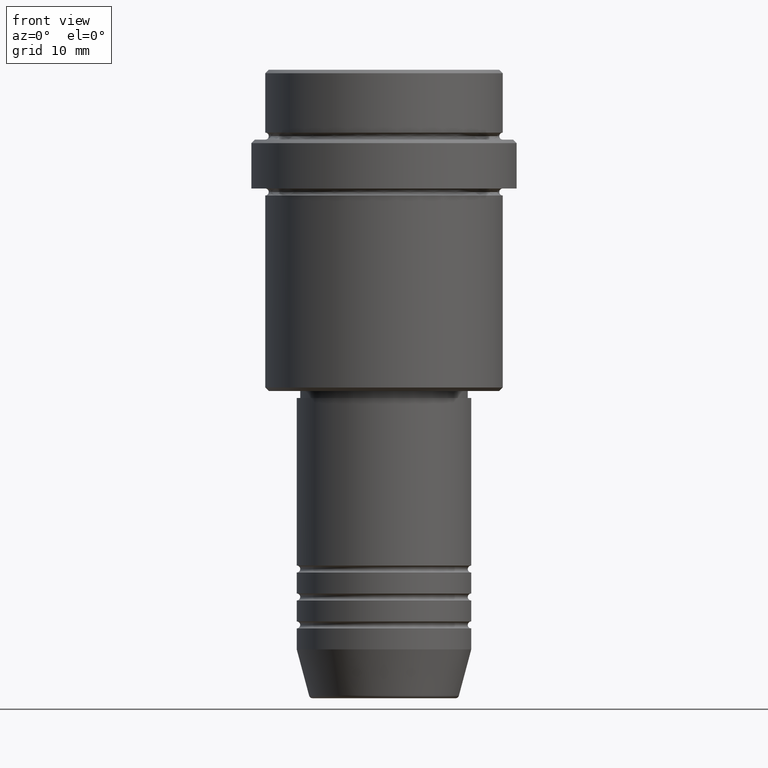
[diagram: clean part render]
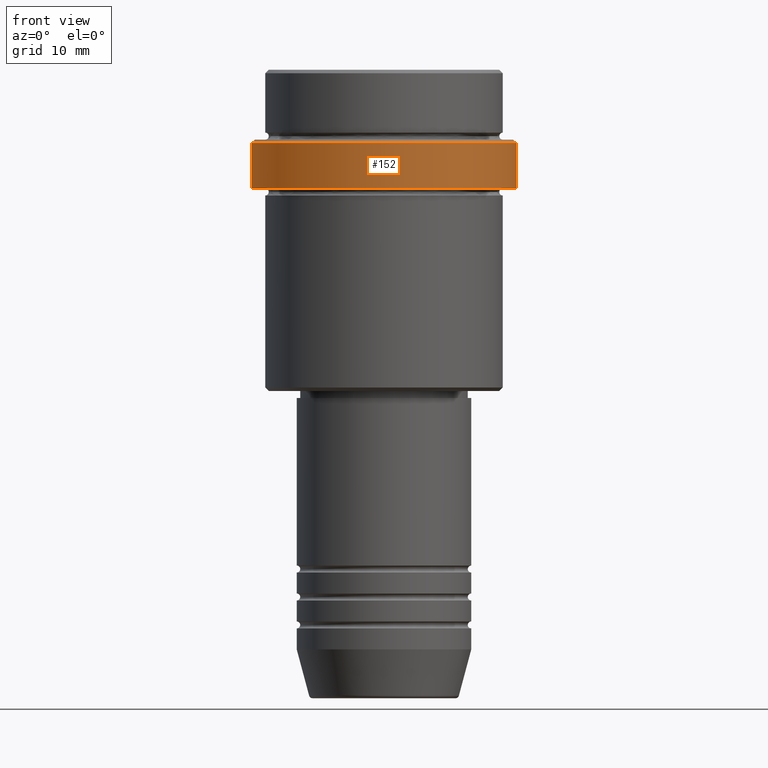
[diagram: same view with one face highlighted and labeled with its STEP entity id]
A machine part, front view. The second image highlights one B-rep face of the part: STEP entity #152.
In plain terms, the highlighted cylindrical surface (partial cylindrical patch) has radius 19 mm, axis along (-0, -0, 1).
Its self-contained STEP definition (entity closure, byte-faithful):
#41 = VERTEX_POINT ( 'NONE', #625 ) ;
#46 = VECTOR ( 'NONE', #1044, 1000.000000000000000 ) ;
#127 = ORIENTED_EDGE ( 'NONE', *, *, #938, .T. ) ;
#152 = ADVANCED_FACE ( 'NONE', ( #873 ), #1095, .T. ) ;
#202 = VERTEX_POINT ( 'NONE', #537 ) ;
#263 = CARTESIAN_POINT ( 'NONE',  ( 0.000000000000000000, 0.000000000000000000, -10.50000000000001599 ) ) ;
#287 = LINE ( 'NONE', #605, #46 ) ;
#309 = EDGE_CURVE ( 'NONE', #1327, #1240, #1190, .T. ) ;
#315 = CARTESIAN_POINT ( 'NONE',  ( 19.00000000000000000, 0.000000000000000000, -17.00000000000000000 ) ) ;
#320 = AXIS2_PLACEMENT_3D ( 'NONE', #885, #571, #788 ) ;
#444 = EDGE_CURVE ( 'NONE', #202, #41, #1118, .T. ) ;
#497 = DIRECTION ( 'NONE',  ( 1.000000000000000000, 0.000000000000000000, 0.000000000000000000 ) ) ;
#537 = CARTESIAN_POINT ( 'NONE',  ( 19.00000000000000000, 0.000000000000000000, -10.50000000000001599 ) ) ;
#567 = CARTESIAN_POINT ( 'NONE',  ( -19.00000000000000000, 2.326828918379970970E-15, 0.000000000000000000 ) ) ;
#571 = DIRECTION ( 'NONE',  ( -0.000000000000000000, -0.000000000000000000, 1.000000000000000000 ) ) ;
#591 = DIRECTION ( 'NONE',  ( 0.000000000000000000, 0.000000000000000000, -1.000000000000000000 ) ) ;
#605 = CARTESIAN_POINT ( 'NONE',  ( 19.00000000000000000, 0.000000000000000000, 0.000000000000000000 ) ) ;
#625 = CARTESIAN_POINT ( 'NONE',  ( -19.00000000000000000, 2.326828918379970970E-15, -10.50000000000001599 ) ) ;
#642 = ORIENTED_EDGE ( 'NONE', *, *, #444, .T. ) ;
#653 = EDGE_CURVE ( 'NONE', #1327, #41, #841, .T. ) ;
#661 = AXIS2_PLACEMENT_3D ( 'NONE', #263, #591, #497 ) ;
#709 = ORIENTED_EDGE ( 'NONE', *, *, #309, .T. ) ;
#788 = DIRECTION ( 'NONE',  ( 1.000000000000000000, 0.000000000000000000, 0.000000000000000000 ) ) ;
#841 = LINE ( 'NONE', #567, #1373 ) ;
#863 = CARTESIAN_POINT ( 'NONE',  ( 0.000000000000000000, 0.000000000000000000, 0.000000000000000000 ) ) ;
#873 = FACE_OUTER_BOUND ( 'NONE', #1149, .T. ) ;
#885 = CARTESIAN_POINT ( 'NONE',  ( 0.000000000000000000, 0.000000000000000000, -17.00000000000000000 ) ) ;
#938 = EDGE_CURVE ( 'NONE', #1240, #202, #287, .T. ) ;
#982 = DIRECTION ( 'NONE',  ( 1.000000000000000000, 0.000000000000000000, 0.000000000000000000 ) ) ;
#983 = AXIS2_PLACEMENT_3D ( 'NONE', #863, #1090, #982 ) ;
#1044 = DIRECTION ( 'NONE',  ( -0.000000000000000000, -0.000000000000000000, 1.000000000000000000 ) ) ;
#1090 = DIRECTION ( 'NONE',  ( -0.000000000000000000, -0.000000000000000000, 1.000000000000000000 ) ) ;
#1095 = CYLINDRICAL_SURFACE ( 'NONE', #983, 19.00000000000000000 ) ;
#1118 = CIRCLE ( 'NONE', #661, 19.00000000000000000 ) ;
#1121 = CARTESIAN_POINT ( 'NONE',  ( -19.00000000000000000, 2.326828918379970970E-15, -17.00000000000000000 ) ) ;
#1149 = EDGE_LOOP ( 'NONE', ( #1188, #709, #127, #642 ) ) ;
#1188 = ORIENTED_EDGE ( 'NONE', *, *, #653, .F. ) ;
#1190 = CIRCLE ( 'NONE', #320, 19.00000000000000000 ) ;
#1206 = DIRECTION ( 'NONE',  ( -0.000000000000000000, -0.000000000000000000, 1.000000000000000000 ) ) ;
#1240 = VERTEX_POINT ( 'NONE', #315 ) ;
#1327 = VERTEX_POINT ( 'NONE', #1121 ) ;
#1373 = VECTOR ( 'NONE', #1206, 1000.000000000000000 ) ;